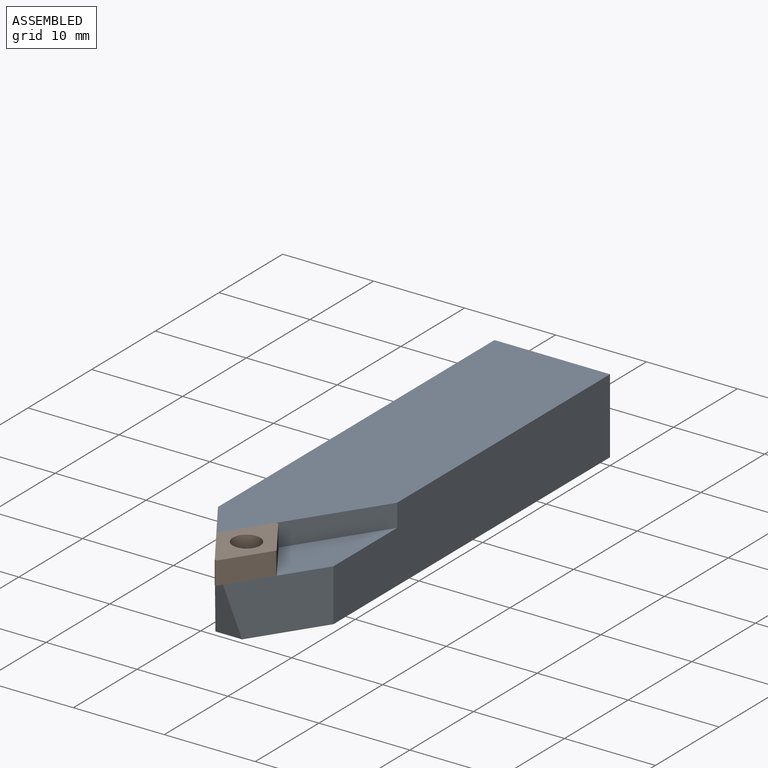
[diagram: assembled view]
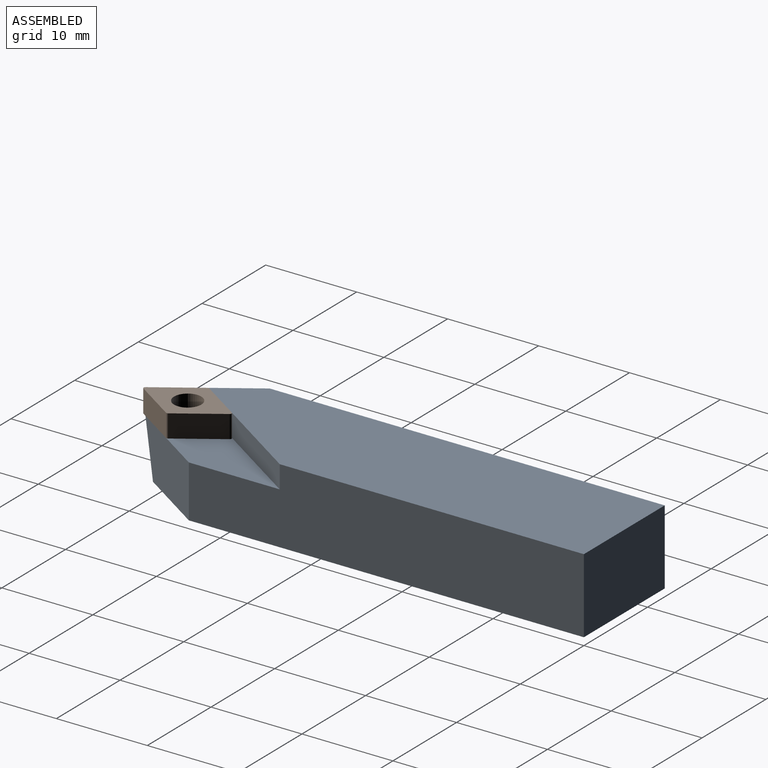
[diagram: assembled view, second angle]
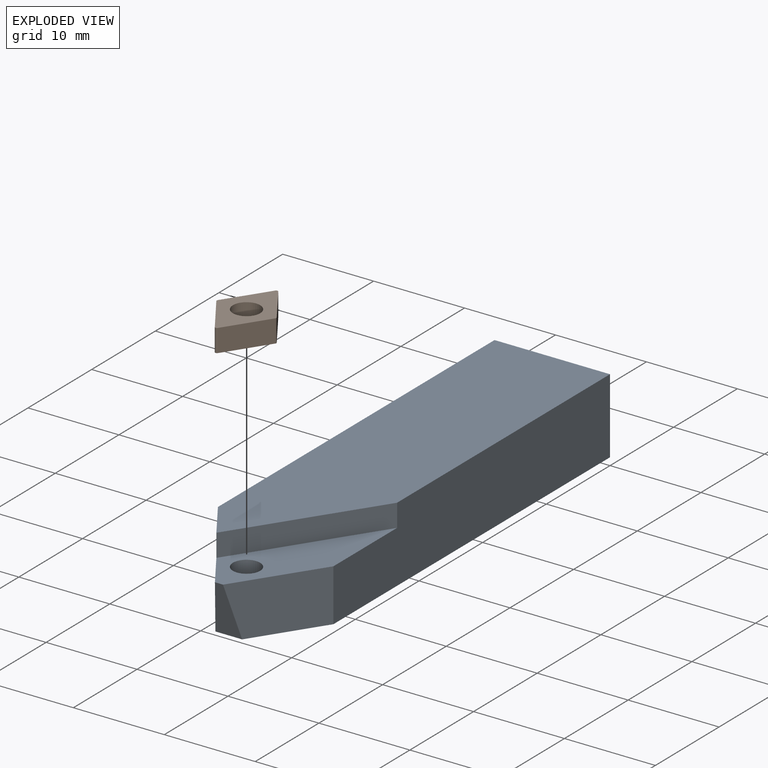
[diagram: exploded view]
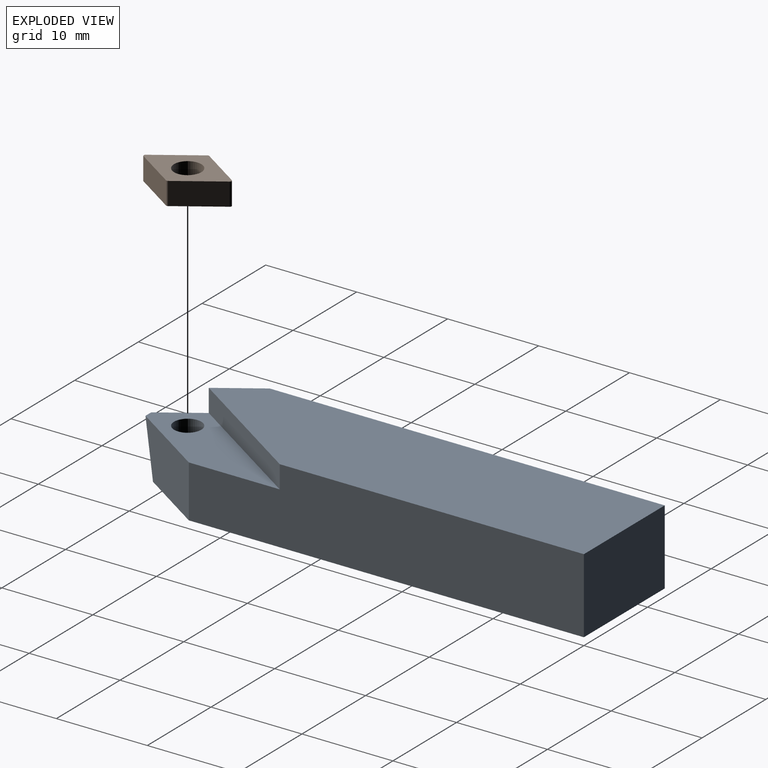
[diagram: exploded view, second angle]
ASSEMBLY  parts=2 mates=3
PART A: 11 faces, bbox 12.7x52.3x8.3 mm
  f0: plane 5.76x2.93mm, normal (0,-0.97,-0.26), area 11.4mm2, adj f1,f2,f8,f9
  f1: plane 50.8x12.7mm, normal (0,0,-1), area 602.1mm2, adj f0,f4,f5,f6,f8,f9,f10
  f2: plane 18.9x9.67mm, normal (0,0,1), area 72.7mm2, adj f0,f5,f7,f8,f9,f10
  f3: plane 48.01x12.7mm, normal (0,0,1), area 532.4mm2, adj f4,f5,f6,f7,f8
  f4: plane 12.7x8.26mm, normal (0,1,0), area 104.8mm2, adj f1,f3,f5,f6
  f5: plane 43.44x8.26mm, normal (1,0,0), area 333.6mm2, adj f1,f2,f3,f4,f7,f9
  f6: plane 43.44x8.26mm, normal (-1,0,0), area 358.6mm2, adj f1,f3,f4,f8
  f7: plane 14.57x9.67mm, normal (0.83,-0.55,0), area 43.7mm2, adj f2,f3,f5,f8
  f8: plane 8.9x8.26mm, normal (-0.83,-0.55,0), area 69.9mm2, adj f0,f1,f2,f3,f6,f7
  f9: plane 8.9x5.91mm, normal (0.83,-0.55,0), area 56.2mm2, adj f0,f1,f2,f5
  f10: cylinder r=1.5mm len=5.76mm, axis (0,0,1), area 54.2mm2, adj f1,f2
PART B: 11 faces, bbox 6.6x9.7x2.5 mm
  f0: plane 4.63x3.07mm, normal (-0.83,0.55,0), area 13.9mm2, adj f5,f6,f7,f10
  f1: plane 4.63x3.07mm, normal (-0.83,-0.55,0), area 13.9mm2, adj f5,f6,f7,f8
  f2: plane 4.63x3.07mm, normal (0.83,-0.55,0), area 13.9mm2, adj f5,f6,f8,f9
  f3: plane 4.63x3.07mm, normal (0.83,0.55,0), area 13.9mm2, adj f5,f6,f9,f10
  f4: cylinder r=1.5mm len=3mm, axis (0,0,-1), area 23.6mm2, adj f5,f6
  f5: plane 9.67x6.55mm, normal (0,0,1), area 26mm2, adj f0,f1,f2,f3,f4,f7,f8,f9
  f6: plane 9.67x6.55mm, normal (0,0,-1), area 26mm2, adj f0,f1,f2,f3,f4,f7,f8,f9
  f7: cylinder r=0.2mm len=2.5mm, axis (0,0,-1), area 0.6mm2, adj f0,f1,f5,f6
  f8: cylinder r=0.2mm len=2.5mm, axis (0,0,-1), area 1mm2, adj f1,f2,f5,f6
  f9: cylinder r=0.2mm len=2.5mm, axis (0,0,-1), area 0.6mm2, adj f2,f3,f5,f6
  f10: cylinder r=0.2mm len=2.5mm, axis (0,0,-1), area 1mm2, adj f0,f3,f5,f6
PLACE A t=(-12.7,0,0)mm
PLACE B t=(-9.67,-48.01,5.76)mm
MATE planar B.f4 <-> A.f2  axis (0,0,-1) through (-6.35,-48.01,5.76)mm
MATE planar A.f7 <-> B.f0  axis (0.83,-0.55,0) through (-4.83,-40.73,7.01)mm
MATE planar A.f8 <-> B.f1  axis (-0.83,-0.55,0) through (-10.23,-47.17,3.76)mm
